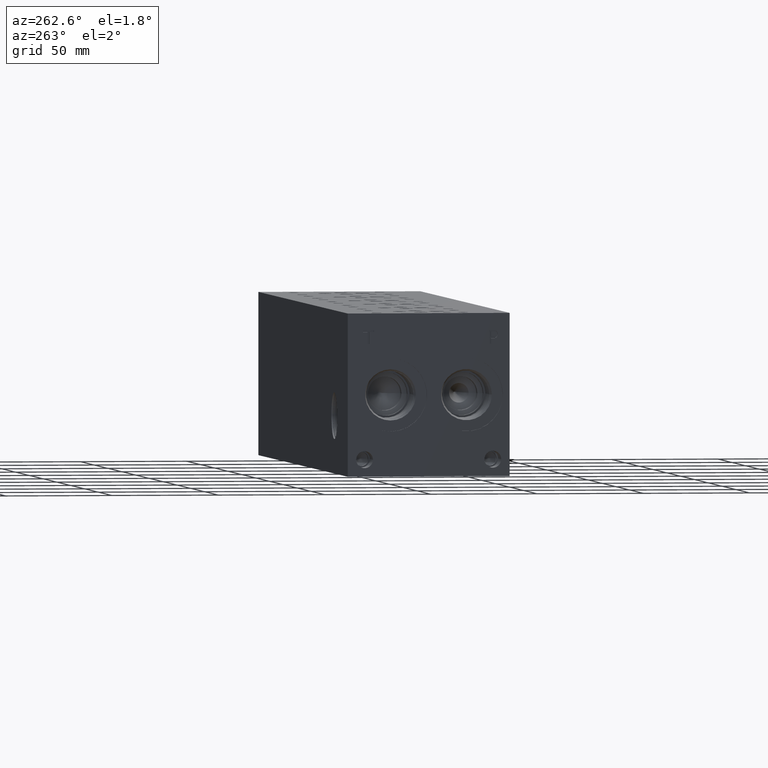
[diagram: clean part render]
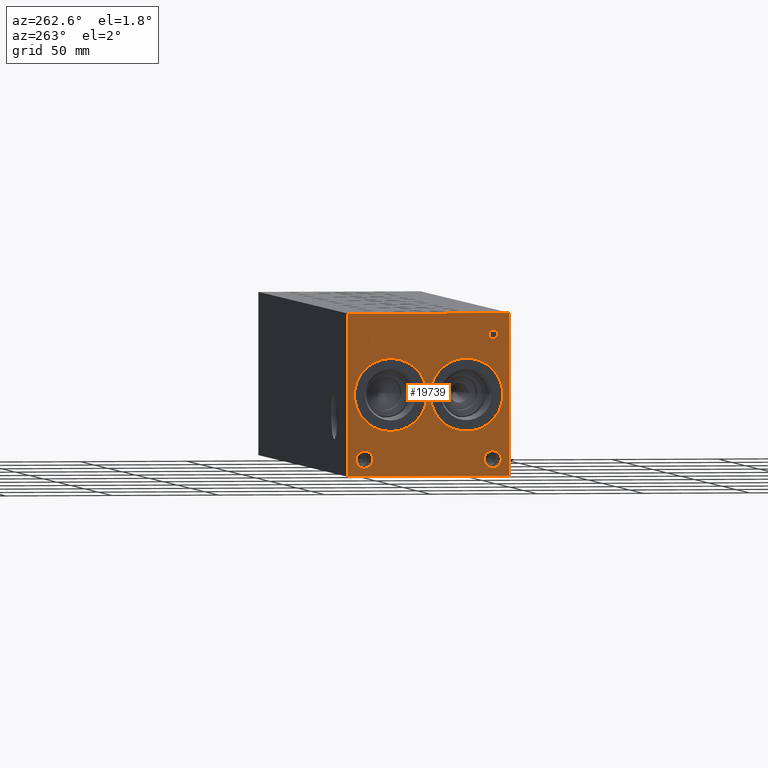
[diagram: same view with one face highlighted and labeled with its STEP entity id]
A machine part, auxiliary view. The second image highlights one B-rep face of the part: STEP entity #19739.
In plain terms, the highlighted planar face has unit normal (-1, 0, 0).
Its self-contained STEP definition (entity closure, byte-faithful):
#360=CIRCLE('',#20592,17.0688);
#361=CIRCLE('',#20593,17.0688);
#362=CIRCLE('',#20594,17.0688);
#363=CIRCLE('',#20595,17.0688);
#364=CIRCLE('',#20596,3.9624);
#365=CIRCLE('',#20597,3.9624);
#366=CIRCLE('',#20598,3.9624);
#367=CIRCLE('',#20599,3.9624);
#1074=FACE_BOUND('',#3491,.T.);
#1075=FACE_BOUND('',#3492,.T.);
#1076=FACE_BOUND('',#3493,.T.);
#1077=FACE_BOUND('',#3494,.T.);
#1078=FACE_BOUND('',#3495,.T.);
#1079=FACE_BOUND('',#3496,.T.);
#1611=PLANE('',#20591);
#2354=FACE_OUTER_BOUND('',#3490,.T.);
#3490=EDGE_LOOP('',(#16167,#16168,#16169,#16170));
#3491=EDGE_LOOP('',(#16171,#16172));
#3492=EDGE_LOOP('',(#16173,#16174));
#3493=EDGE_LOOP('',(#16175,#16176));
#3494=EDGE_LOOP('',(#16177,#16178));
#3495=EDGE_LOOP('',(#16179,#16180,#16181,#16182,#16183,#16184,#16185,#16186));
#3496=EDGE_LOOP('',(#16187,#16188,#16189,#16190,#16191,#16192,#16193,#16194,
#16195));
#4056=LINE('',#26537,#5696);
#5292=LINE('',#33134,#6932);
#5295=LINE('',#33140,#6935);
#5298=LINE('',#33146,#6938);
#5301=LINE('',#33152,#6941);
#5304=LINE('',#33158,#6944);
#5308=LINE('',#33200,#6948);
#5309=LINE('',#33202,#6949);
#5310=LINE('',#33203,#6950);
#5311=LINE('',#33222,#6951);
#5312=LINE('',#33224,#6952);
#5313=LINE('',#33226,#6953);
#5314=LINE('',#33228,#6954);
#5315=LINE('',#33230,#6955);
#5316=LINE('',#33232,#6956);
#5317=LINE('',#33234,#6957);
#5318=LINE('',#33235,#6958);
#5696=VECTOR('',#21690,10.);
#6932=VECTOR('',#23782,10.);
#6935=VECTOR('',#23787,10.);
#6938=VECTOR('',#23792,10.);
#6941=VECTOR('',#23797,10.);
#6944=VECTOR('',#23802,10.);
#6948=VECTOR('',#23810,10.);
#6949=VECTOR('',#23811,10.);
#6950=VECTOR('',#23812,10.);
#6951=VECTOR('',#23829,10.);
#6952=VECTOR('',#23830,10.);
#6953=VECTOR('',#23831,10.);
#6954=VECTOR('',#23832,10.);
#6955=VECTOR('',#23833,10.);
#6956=VECTOR('',#23834,10.);
#6957=VECTOR('',#23835,10.);
#6958=VECTOR('',#23836,10.);
#7783=B_SPLINE_CURVE_WITH_KNOTS('',2,(#33101,#33102,#33103,#33104),
 .UNSPECIFIED.,.F.,.F.,(3,1,3),(0.,1.,2.),.UNSPECIFIED.);
#7785=B_SPLINE_CURVE_WITH_KNOTS('',2,(#33122,#33123,#33124,#33125),
 .UNSPECIFIED.,.F.,.F.,(3,1,3),(0.,1.,2.),.UNSPECIFIED.);
#7787=B_SPLINE_CURVE_WITH_KNOTS('',2,(#33171,#33172,#33173,#33174),
 .UNSPECIFIED.,.F.,.F.,(3,1,3),(0.,1.,2.),.UNSPECIFIED.);
#7789=B_SPLINE_CURVE_WITH_KNOTS('',2,(#33189,#33190,#33191,#33192),
 .UNSPECIFIED.,.F.,.F.,(3,1,3),(0.,1.,2.),.UNSPECIFIED.);
#7839=VERTEX_POINT('',#26530);
#7842=VERTEX_POINT('',#26535);
#9009=VERTEX_POINT('',#33099);
#9010=VERTEX_POINT('',#33100);
#9013=VERTEX_POINT('',#33121);
#9015=VERTEX_POINT('',#33133);
#9017=VERTEX_POINT('',#33139);
#9019=VERTEX_POINT('',#33145);
#9021=VERTEX_POINT('',#33151);
#9023=VERTEX_POINT('',#33157);
#9025=VERTEX_POINT('',#33170);
#9027=VERTEX_POINT('',#33199);
#9028=VERTEX_POINT('',#33201);
#9029=VERTEX_POINT('',#33204);
#9030=VERTEX_POINT('',#33205);
#9031=VERTEX_POINT('',#33208);
#9032=VERTEX_POINT('',#33209);
#9033=VERTEX_POINT('',#33212);
#9034=VERTEX_POINT('',#33213);
#9035=VERTEX_POINT('',#33216);
#9036=VERTEX_POINT('',#33217);
#9037=VERTEX_POINT('',#33220);
#9038=VERTEX_POINT('',#33221);
#9039=VERTEX_POINT('',#33223);
#9040=VERTEX_POINT('',#33225);
#9041=VERTEX_POINT('',#33227);
#9042=VERTEX_POINT('',#33229);
#9043=VERTEX_POINT('',#33231);
#9044=VERTEX_POINT('',#33233);
#9829=EDGE_CURVE('',#7839,#7842,#4056,.T.);
#11562=EDGE_CURVE('',#9009,#9010,#7783,.T.);
#11566=EDGE_CURVE('',#9013,#9009,#7785,.T.);
#11569=EDGE_CURVE('',#9015,#9013,#5292,.T.);
#11572=EDGE_CURVE('',#9017,#9015,#5295,.T.);
#11575=EDGE_CURVE('',#9019,#9017,#5298,.T.);
#11578=EDGE_CURVE('',#9021,#9019,#5301,.T.);
#11581=EDGE_CURVE('',#9023,#9021,#5304,.T.);
#11584=EDGE_CURVE('',#9025,#9023,#7787,.T.);
#11587=EDGE_CURVE('',#9010,#9025,#7789,.T.);
#11589=EDGE_CURVE('',#9027,#7839,#5308,.T.);
#11590=EDGE_CURVE('',#9028,#7842,#5309,.T.);
#11591=EDGE_CURVE('',#9027,#9028,#5310,.T.);
#11592=EDGE_CURVE('',#9029,#9030,#360,.T.);
#11593=EDGE_CURVE('',#9030,#9029,#361,.T.);
#11594=EDGE_CURVE('',#9031,#9032,#362,.T.);
#11595=EDGE_CURVE('',#9032,#9031,#363,.T.);
#11596=EDGE_CURVE('',#9033,#9034,#364,.T.);
#11597=EDGE_CURVE('',#9034,#9033,#365,.T.);
#11598=EDGE_CURVE('',#9035,#9036,#366,.T.);
#11599=EDGE_CURVE('',#9036,#9035,#367,.T.);
#11600=EDGE_CURVE('',#9037,#9038,#5311,.T.);
#11601=EDGE_CURVE('',#9038,#9039,#5312,.T.);
#11602=EDGE_CURVE('',#9039,#9040,#5313,.T.);
#11603=EDGE_CURVE('',#9040,#9041,#5314,.T.);
#11604=EDGE_CURVE('',#9041,#9042,#5315,.T.);
#11605=EDGE_CURVE('',#9042,#9043,#5316,.T.);
#11606=EDGE_CURVE('',#9043,#9044,#5317,.T.);
#11607=EDGE_CURVE('',#9044,#9037,#5318,.T.);
#16167=ORIENTED_EDGE('',*,*,#11589,.T.);
#16168=ORIENTED_EDGE('',*,*,#9829,.T.);
#16169=ORIENTED_EDGE('',*,*,#11590,.F.);
#16170=ORIENTED_EDGE('',*,*,#11591,.F.);
#16171=ORIENTED_EDGE('',*,*,#11592,.T.);
#16172=ORIENTED_EDGE('',*,*,#11593,.T.);
#16173=ORIENTED_EDGE('',*,*,#11594,.T.);
#16174=ORIENTED_EDGE('',*,*,#11595,.T.);
#16175=ORIENTED_EDGE('',*,*,#11596,.T.);
#16176=ORIENTED_EDGE('',*,*,#11597,.T.);
#16177=ORIENTED_EDGE('',*,*,#11598,.T.);
#16178=ORIENTED_EDGE('',*,*,#11599,.T.);
#16179=ORIENTED_EDGE('',*,*,#11600,.T.);
#16180=ORIENTED_EDGE('',*,*,#11601,.T.);
#16181=ORIENTED_EDGE('',*,*,#11602,.T.);
#16182=ORIENTED_EDGE('',*,*,#11603,.T.);
#16183=ORIENTED_EDGE('',*,*,#11604,.T.);
#16184=ORIENTED_EDGE('',*,*,#11605,.T.);
#16185=ORIENTED_EDGE('',*,*,#11606,.T.);
#16186=ORIENTED_EDGE('',*,*,#11607,.T.);
#16187=ORIENTED_EDGE('',*,*,#11562,.T.);
#16188=ORIENTED_EDGE('',*,*,#11587,.T.);
#16189=ORIENTED_EDGE('',*,*,#11584,.T.);
#16190=ORIENTED_EDGE('',*,*,#11581,.T.);
#16191=ORIENTED_EDGE('',*,*,#11578,.T.);
#16192=ORIENTED_EDGE('',*,*,#11575,.T.);
#16193=ORIENTED_EDGE('',*,*,#11572,.T.);
#16194=ORIENTED_EDGE('',*,*,#11569,.T.);
#16195=ORIENTED_EDGE('',*,*,#11566,.T.);
#19739=ADVANCED_FACE('',(#2354,#1074,#1075,#1076,#1077,#1078,#1079),#1611,
 .T.);
#20591=AXIS2_PLACEMENT_3D('',#33198,#23808,#23809);
#20592=AXIS2_PLACEMENT_3D('',#33206,#23813,#23814);
#20593=AXIS2_PLACEMENT_3D('',#33207,#23815,#23816);
#20594=AXIS2_PLACEMENT_3D('',#33210,#23817,#23818);
#20595=AXIS2_PLACEMENT_3D('',#33211,#23819,#23820);
#20596=AXIS2_PLACEMENT_3D('',#33214,#23821,#23822);
#20597=AXIS2_PLACEMENT_3D('',#33215,#23823,#23824);
#20598=AXIS2_PLACEMENT_3D('',#33218,#23825,#23826);
#20599=AXIS2_PLACEMENT_3D('',#33219,#23827,#23828);
#21690=DIRECTION('',(0.,0.,1.));
#23782=DIRECTION('',(0.,-1.,-5.56775304226775E-15));
#23787=DIRECTION('',(0.,-3.14708893596576E-15,1.));
#23792=DIRECTION('',(0.,1.,0.));
#23797=DIRECTION('',(0.,2.81413604853751E-15,-1.));
#23802=DIRECTION('',(0.,1.,0.));
#23808=DIRECTION('center_axis',(-1.,0.,0.));
#23809=DIRECTION('ref_axis',(0.,-1.,0.));
#23810=DIRECTION('',(0.,-1.,0.));
#23811=DIRECTION('',(0.,-1.,0.));
#23812=DIRECTION('',(0.,0.,1.));
#23813=DIRECTION('center_axis',(1.,0.,0.));
#23814=DIRECTION('ref_axis',(0.,0.,1.));
#23815=DIRECTION('center_axis',(1.,0.,0.));
#23816=DIRECTION('ref_axis',(0.,0.,1.));
#23817=DIRECTION('center_axis',(1.,0.,0.));
#23818=DIRECTION('ref_axis',(0.,1.,0.));
#23819=DIRECTION('center_axis',(1.,0.,0.));
#23820=DIRECTION('ref_axis',(0.,1.,0.));
#23821=DIRECTION('center_axis',(1.,0.,0.));
#23822=DIRECTION('ref_axis',(0.,1.,0.));
#23823=DIRECTION('center_axis',(1.,0.,0.));
#23824=DIRECTION('ref_axis',(0.,1.,0.));
#23825=DIRECTION('center_axis',(1.,0.,0.));
#23826=DIRECTION('ref_axis',(0.,1.,0.));
#23827=DIRECTION('center_axis',(1.,0.,0.));
#23828=DIRECTION('ref_axis',(0.,1.,0.));
#23829=DIRECTION('',(0.,1.,0.));
#23830=DIRECTION('',(0.,-3.17280044688052E-15,1.));
#23831=DIRECTION('',(0.,1.,4.16909044227779E-15));
#23832=DIRECTION('',(0.,-1.18219413911165E-14,1.));
#23833=DIRECTION('',(0.,-1.,-3.47984565141734E-15));
#23834=DIRECTION('',(0.,1.18219413911165E-14,-1.));
#23835=DIRECTION('',(0.,1.,4.16909044227778E-15));
#23836=DIRECTION('',(0.,3.17280044688052E-15,-1.));
#26530=CARTESIAN_POINT('',(0.,0.,0.));
#26535=CARTESIAN_POINT('',(0.,0.,76.2));
#26537=CARTESIAN_POINT('',(0.,0.,0.));
#33099=CARTESIAN_POINT('',(0.,6.41818279764059,67.8662681439707));
#33100=CARTESIAN_POINT('',(0.,5.661740345468,66.3482373726039));
#33101=CARTESIAN_POINT('Ctrl Pts',(0.,6.41818279764059,67.8662681439707));
#33102=CARTESIAN_POINT('Ctrl Pts',(0.,6.06311797315141,67.6244123939564));
#33103=CARTESIAN_POINT('Ctrl Pts',(0.,5.66174034546799,66.8782616758269));
#33104=CARTESIAN_POINT('Ctrl Pts',(0.,5.661740345468,66.3482373726039));
#33121=CARTESIAN_POINT('',(0.,8.08029784561167,68.2624999046326));
#33122=CARTESIAN_POINT('Ctrl Pts',(0.,8.08029784561167,68.2624999046326));
#33123=CARTESIAN_POINT('Ctrl Pts',(0.,7.51425247323762,68.2624999046326));
#33124=CARTESIAN_POINT('Ctrl Pts',(0.,6.72178895191395,68.0772486918556));
#33125=CARTESIAN_POINT('Ctrl Pts',(0.,6.41818279764059,67.8662681439707));
#33133=CARTESIAN_POINT('',(0.,9.67551662230219,68.2624999046326));
#33134=CARTESIAN_POINT('',(0.,42.9377583111509,68.2624999046328));
#33139=CARTESIAN_POINT('',(0.,9.67551662230221,61.9125));
#33140=CARTESIAN_POINT('',(0.,9.67551662230231,30.9562499999999));
#33145=CARTESIAN_POINT('',(0.,8.83159443076271,61.9125));
#33146=CARTESIAN_POINT('',(0.,42.5157972153814,61.9125));
#33151=CARTESIAN_POINT('',(0.,8.83159443076271,64.2795988299279));
#33152=CARTESIAN_POINT('',(0.,8.83159443076279,32.1397994149638));
#33157=CARTESIAN_POINT('',(0.,8.11631891476276,64.2795988299279));
#33158=CARTESIAN_POINT('',(0.,42.1581594573814,64.2795988299279));
#33170=CARTESIAN_POINT('',(0.,6.21749398379889,64.9382698086904));
#33171=CARTESIAN_POINT('Ctrl Pts',(0.,6.21749398379889,64.9382698086904));
#33172=CARTESIAN_POINT('Ctrl Pts',(0.,6.54682947318016,64.6140801863307));
#33173=CARTESIAN_POINT('Ctrl Pts',(0.,7.4370644679139,64.2795988299279));
#33174=CARTESIAN_POINT('Ctrl Pts',(0.,8.11631891476276,64.2795988299279));
#33189=CARTESIAN_POINT('Ctrl Pts',(0.,5.661740345468,66.3482373726039));
#33190=CARTESIAN_POINT('Ctrl Pts',(0.,5.661740345468,65.9365680108774));
#33191=CARTESIAN_POINT('Ctrl Pts',(0.,5.95505476569819,65.1955631597695));
#33192=CARTESIAN_POINT('Ctrl Pts',(0.,6.21749398379889,64.9382698086904));
#33198=CARTESIAN_POINT('Origin',(0.,76.2,0.));
#33199=CARTESIAN_POINT('',(0.,76.2,0.));
#33200=CARTESIAN_POINT('',(0.,76.2,0.));
#33201=CARTESIAN_POINT('',(0.,76.2,76.2));
#33202=CARTESIAN_POINT('',(0.,76.2,76.2));
#33203=CARTESIAN_POINT('',(0.,76.2,0.));
#33204=CARTESIAN_POINT('',(0.,55.9562,55.1688));
#33205=CARTESIAN_POINT('',(0.,55.9562,21.0312));
#33206=CARTESIAN_POINT('Origin',(0.,55.9562,38.1));
#33207=CARTESIAN_POINT('Origin',(0.,55.9562,38.1));
#33208=CARTESIAN_POINT('',(0.,37.3126,38.1));
#33209=CARTESIAN_POINT('',(0.,3.175,38.1));
#33210=CARTESIAN_POINT('Origin',(0.,20.2438,38.1));
#33211=CARTESIAN_POINT('Origin',(0.,20.2438,38.1));
#33212=CARTESIAN_POINT('',(0.,11.8872,7.92480000000001));
#33213=CARTESIAN_POINT('',(0.,3.9624,7.92480000000001));
#33214=CARTESIAN_POINT('Origin',(0.,7.9248,7.92480000000001));
#33215=CARTESIAN_POINT('Origin',(0.,7.9248,7.92480000000001));
#33216=CARTESIAN_POINT('',(0.,72.2376,7.92480000000001));
#33217=CARTESIAN_POINT('',(0.,64.3128,7.92480000000001));
#33218=CARTESIAN_POINT('Origin',(0.,68.2752,7.92480000000001));
#33219=CARTESIAN_POINT('Origin',(0.,68.2752,7.92480000000001));
#33220=CARTESIAN_POINT('',(0.,66.087084728547,61.9125));
#33221=CARTESIAN_POINT('',(0.,66.9310069200865,61.9125));
#33222=CARTESIAN_POINT('',(0.,71.1435423642735,61.9125));
#33223=CARTESIAN_POINT('',(0.,66.9310069200865,67.5112033194816));
#33224=CARTESIAN_POINT('',(0.,66.9310069200866,30.95625));
#33225=CARTESIAN_POINT('',(0.,69.0613958670216,67.5112033194816));
#33226=CARTESIAN_POINT('',(0.,71.5655034600431,67.5112033194816));
#33227=CARTESIAN_POINT('',(0.,69.0613958670215,68.2624999046326));
#33228=CARTESIAN_POINT('',(0.,69.061395867022,33.7556016597407));
#33229=CARTESIAN_POINT('',(0.,63.9566957816119,68.2624999046326));
#33230=CARTESIAN_POINT('',(0.,72.6306979335107,68.2624999046326));
#33231=CARTESIAN_POINT('',(0.,63.9566957816119,67.5112033194816));
#33232=CARTESIAN_POINT('',(0.,63.9566957816123,34.1312499523162));
#33233=CARTESIAN_POINT('',(0.,66.087084728547,67.5112033194816));
#33234=CARTESIAN_POINT('',(0.,70.0783478908058,67.5112033194816));
#33235=CARTESIAN_POINT('',(0.,66.0870847285471,33.7556016597408));